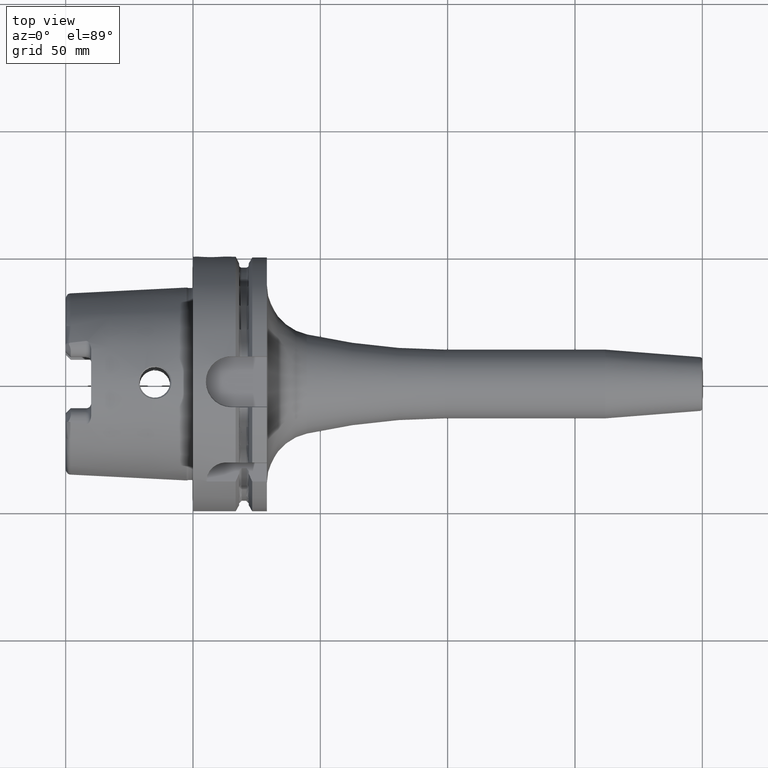
[diagram: clean part render]
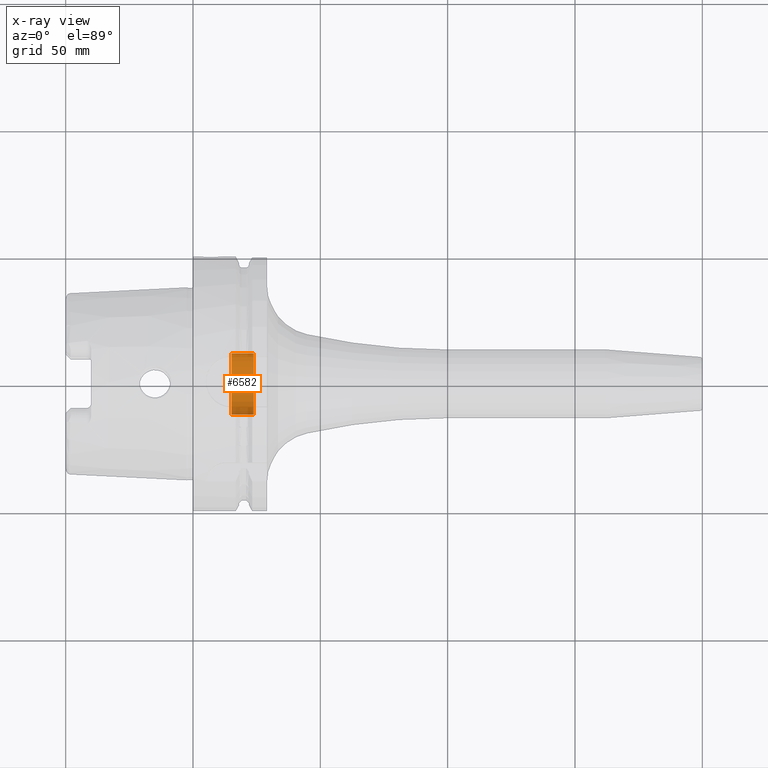
[diagram: x-ray — body ghosted, one internal face saturated and labeled with its STEP entity id]
A machine part, top view, then the same camera in x-ray: the body is ghosted and one INTERNAL B-rep face — a face not visible from any outside direction — is saturated and labeled: STEP entity #6582.
In plain terms, the highlighted cylindrical surface (edge-blend (fillet) strip) has radius 12 mm, axis along (1, 0, 0).
Its self-contained STEP definition (entity closure, byte-faithful):
#6495=CARTESIAN_POINT('',(1.51625E1,0.E0,0.E0));
#6496=DIRECTION('',(1.E0,0.E0,0.E0));
#6497=DIRECTION('',(0.E0,-1.E0,0.E0));
#6498=AXIS2_PLACEMENT_3D('',#6495,#6496,#6497);
#6500=CARTESIAN_POINT('',(2.385262794416E1,0.E0,0.E0));
#6501=DIRECTION('',(-1.E0,0.E0,0.E0));
#6502=DIRECTION('',(0.E0,1.E0,0.E0));
#6503=AXIS2_PLACEMENT_3D('',#6500,#6501,#6502);
#6520=DIRECTION('',(-1.E0,0.E0,0.E0));
#6521=VECTOR('',#6520,8.690127944163E0);
#6522=CARTESIAN_POINT('',(2.385262794416E1,-1.2E1,0.E0));
#6523=LINE('',#6522,#6521);
#6529=DIRECTION('',(-1.E0,0.E0,0.E0));
#6530=VECTOR('',#6529,8.690127944163E0);
#6531=CARTESIAN_POINT('',(2.385262794416E1,1.2E1,0.E0));
#6532=LINE('',#6531,#6530);
#6555=CARTESIAN_POINT('',(1.51625E1,-1.2E1,0.E0));
#6556=CARTESIAN_POINT('',(1.51625E1,1.2E1,0.E0));
#6557=VERTEX_POINT('',#6555);
#6558=VERTEX_POINT('',#6556);
#6559=CARTESIAN_POINT('',(2.385262794416E1,-1.2E1,0.E0));
#6560=CARTESIAN_POINT('',(2.385262794416E1,1.2E1,0.E0));
#6561=VERTEX_POINT('',#6559);
#6562=VERTEX_POINT('',#6560);
#6567=CARTESIAN_POINT('',(-4.847666062263E0,0.E0,0.E0));
#6568=DIRECTION('',(1.E0,0.E0,0.E0));
#6569=DIRECTION('',(0.E0,-1.E0,0.E0));
#6570=AXIS2_PLACEMENT_3D('',#6567,#6568,#6569);
#6571=CYLINDRICAL_SURFACE('',#6570,1.2E1);
#6573=ORIENTED_EDGE('',*,*,#6572,.T.);
#6575=ORIENTED_EDGE('',*,*,#6574,.F.);
#6577=ORIENTED_EDGE('',*,*,#6576,.T.);
#6579=ORIENTED_EDGE('',*,*,#6578,.T.);
#6580=EDGE_LOOP('',(#6573,#6575,#6577,#6579));
#6581=FACE_OUTER_BOUND('',#6580,.F.);
#6582=ADVANCED_FACE('',(#6581),#6571,.F.);
#6499=CIRCLE('',#6498,1.2E1);
#6504=CIRCLE('',#6503,1.2E1);
#6572=EDGE_CURVE('',#6557,#6558,#6499,.T.);
#6574=EDGE_CURVE('',#6562,#6558,#6532,.T.);
#6576=EDGE_CURVE('',#6562,#6561,#6504,.T.);
#6578=EDGE_CURVE('',#6561,#6557,#6523,.T.);